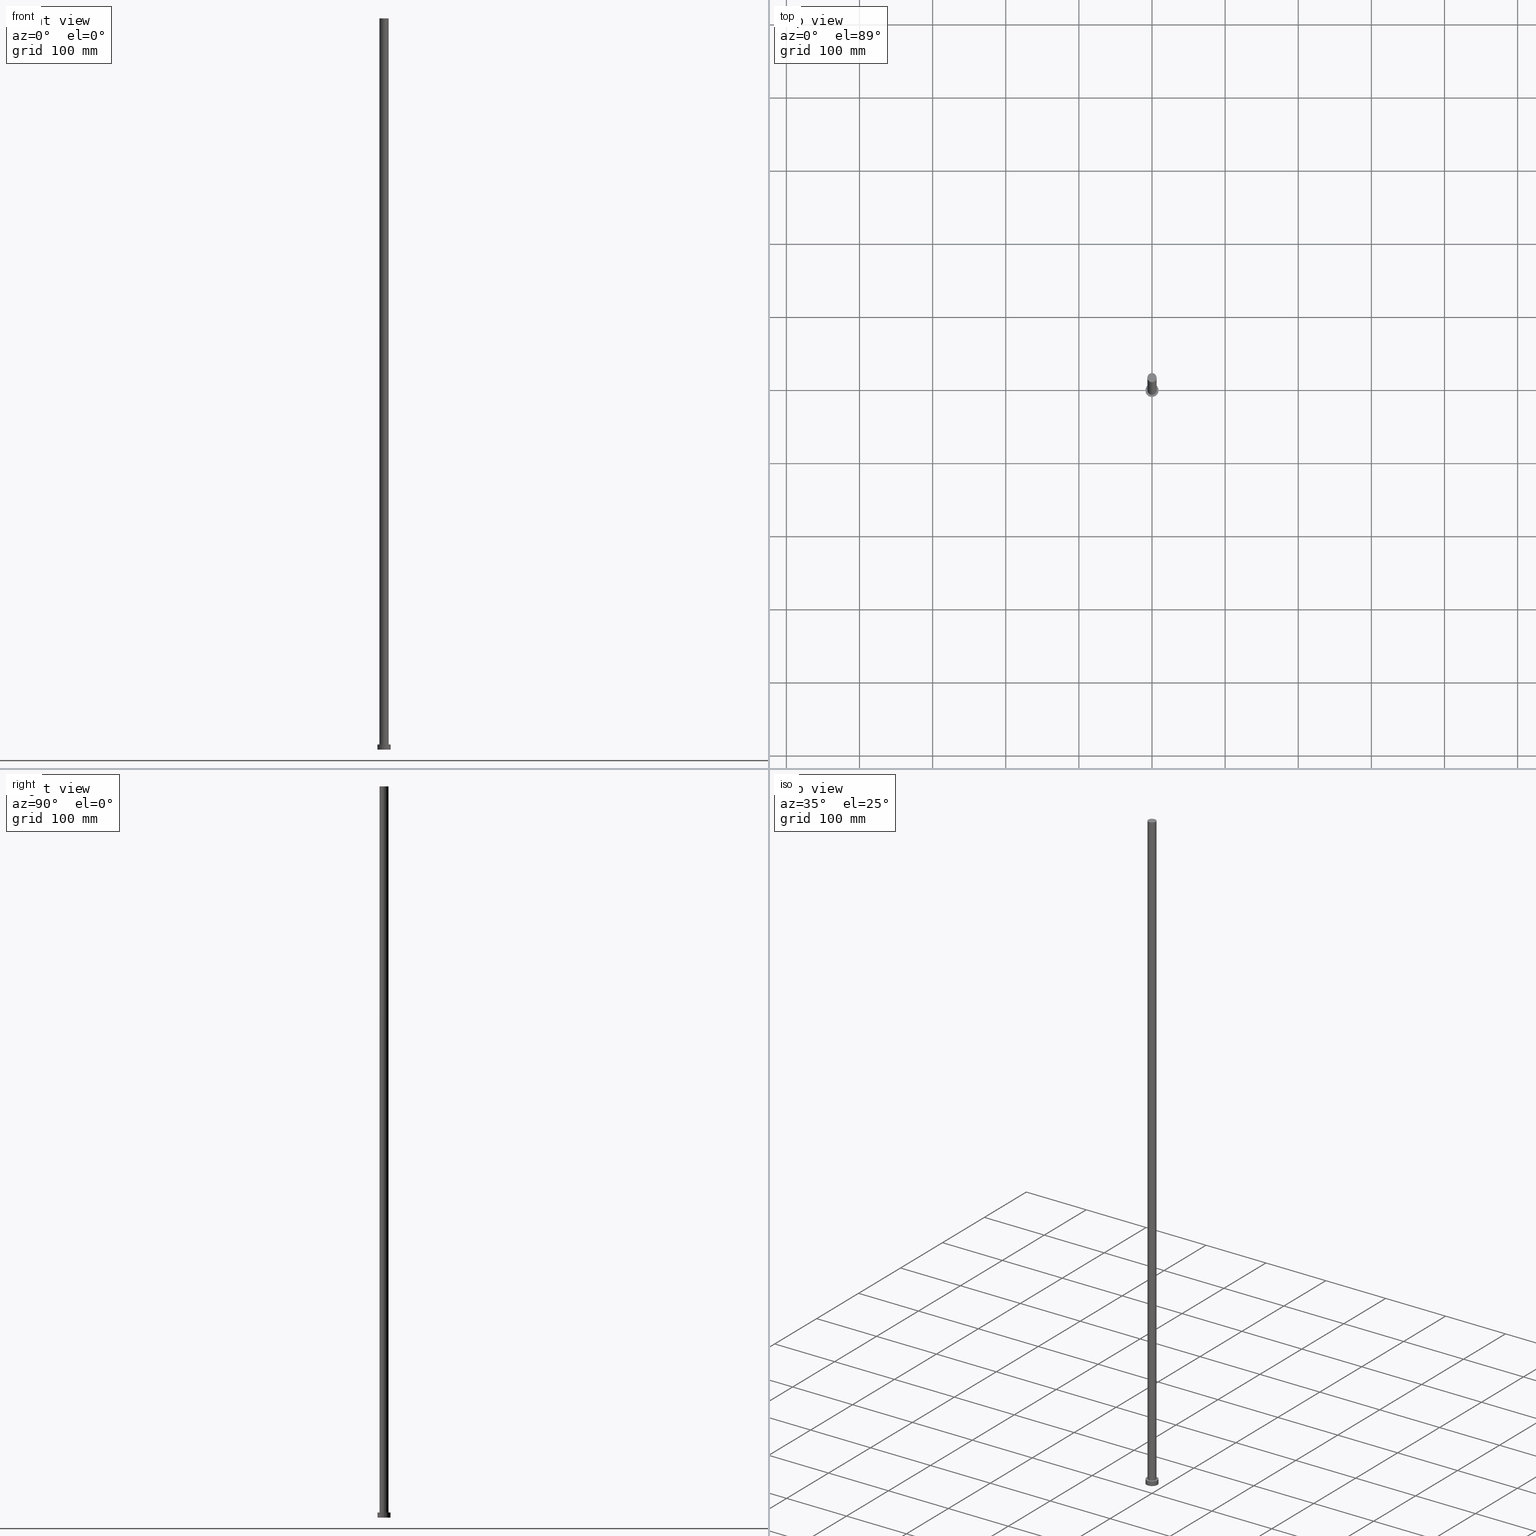
[diagram: canonical four-view strip — front | top / right | iso, engineering-drawing reading convention]
A machine part, canonical four-view strip (front | top / right | iso — engineering-drawing reading convention). The complete STEP part file that produces these views, byte-faithful:
ISO-10303-21;
HEADER;
FILE_DESCRIPTION (( 'STEP AP203' ),
    '1' );
FILE_NAME ('bc82.STEP',
    '2023-02-12T10:53:55',
    ( '' ),
    ( '' ),
    'SwSTEP 2.0',
    'SolidWorks 2019',
    '' );
FILE_SCHEMA (( 'CONFIG_CONTROL_DESIGN' ));
ENDSEC;

DATA;
#1 = CARTESIAN_POINT ( 'NONE',  ( 0.000000000000000000, 0.000000000000000000, 1000.000000000000000 ) ) ;
#2 = DIRECTION ( 'NONE',  ( -0.000000000000000000, -0.000000000000000000, -1.000000000000000000 ) ) ;
#3 = COORDINATED_UNIVERSAL_TIME_OFFSET ( 1, 0, .AHEAD. ) ;
#4 = FACE_OUTER_BOUND ( 'NONE', #162, .T. ) ;
#5 = DIRECTION ( 'NONE',  ( -0.000000000000000000, -0.000000000000000000, -1.000000000000000000 ) ) ;
#6 = VERTEX_POINT ( 'NONE', #87 ) ;
#7 = EDGE_CURVE ( 'NONE', #186, #250, #124, .T. ) ;
#8 = EDGE_LOOP ( 'NONE', ( #89, #166 ) ) ;
#9 = CC_DESIGN_DATE_AND_TIME_ASSIGNMENT ( #23, #175, ( #240 ) ) ;
#10 = ORIENTED_EDGE ( 'NONE', *, *, #41, .F. ) ;
#11 = CALENDAR_DATE ( 2023, 12, 2 ) ;
#12 = DIRECTION ( 'NONE',  ( 0.000000000000000000, 0.000000000000000000, 1.000000000000000000 ) ) ;
#13 = CYLINDRICAL_SURFACE ( 'NONE', #140, 9.000000000000000000 ) ;
#14 = DIRECTION ( 'NONE',  ( -0.000000000000000000, -0.000000000000000000, -1.000000000000000000 ) ) ;
#15 = DATE_AND_TIME ( #11, #251 ) ;
#16 = FACE_OUTER_BOUND ( 'NONE', #104, .T. ) ;
#17 = EDGE_CURVE ( 'NONE', #6, #84, #199, .T. ) ;
#18 = LINE ( 'NONE', #21, #181 ) ;
#19 = AXIS2_PLACEMENT_3D ( 'NONE', #65, #5, #83 ) ;
#20 = ADVANCED_FACE ( 'NONE', ( #170, #16 ), #129, .T. ) ;
#21 = CARTESIAN_POINT ( 'NONE',  ( -6.250000000000000000, 0.000000000000000000, 1000.000000000000000 ) ) ;
#22 = DIRECTION ( 'NONE',  ( 1.000000000000000000, 0.000000000000000000, 0.000000000000000000 ) ) ;
#23 = DATE_AND_TIME ( #196, #78 ) ;
#24 = PERSON_AND_ORGANIZATION ( #133, #209 ) ;
#25 = APPROVAL_STATUS ( 'not_yet_approved' ) ;
#26 = APPROVAL ( #239, 'NEUR�EN�' ) ;
#27 = DIRECTION ( 'NONE',  ( 0.000000000000000000, 0.000000000000000000, 1.000000000000000000 ) ) ;
#28 = APPLICATION_CONTEXT ( 'configuration controlled 3d designs of mechanical parts and assemblies' ) ;
#29 = PRODUCT_RELATED_PRODUCT_CATEGORY ( 'detail', '', ( #121 ) ) ;
#30 = PERSON_AND_ORGANIZATION_ROLE ( 'classification_officer' ) ;
#31 = APPROVAL_DATE_TIME ( #88, #227 ) ;
#32 = EDGE_CURVE ( 'NONE', #248, #186, #208, .T. ) ;
#33 = DIRECTION ( 'NONE',  ( 1.000000000000000000, 0.000000000000000000, 0.000000000000000000 ) ) ;
#34 = CARTESIAN_POINT ( 'NONE',  ( -9.000000000000000000, 0.000000000000000000, 0.000000000000000000 ) ) ;
#35 = UNCERTAINTY_MEASURE_WITH_UNIT (LENGTH_MEASURE( 1.000000000000000082E-05 ), #238, 'distance_accuracy_value', 'NONE');
#36 = VECTOR ( 'NONE', #38, 1000.000000000000000 ) ;
#37 = DIRECTION ( 'NONE',  ( 0.000000000000000000, 0.000000000000000000, 1.000000000000000000 ) ) ;
#38 = DIRECTION ( 'NONE',  ( -0.000000000000000000, -0.000000000000000000, -1.000000000000000000 ) ) ;
#39 = CC_DESIGN_APPROVAL ( #227, ( #70 ) ) ;
#40 = CARTESIAN_POINT ( 'NONE',  ( 0.000000000000000000, 0.000000000000000000, 7.000000000000000000 ) ) ;
#41 = EDGE_CURVE ( 'NONE', #84, #6, #212, .T. ) ;
#42 = DATE_AND_TIME ( #216, #160 ) ;
#43 = CARTESIAN_POINT ( 'NONE',  ( 0.000000000000000000, 0.000000000000000000, 0.000000000000000000 ) ) ;
#44 = EDGE_CURVE ( 'NONE', #126, #248, #132, .T. ) ;
#45 = MECHANICAL_CONTEXT ( 'NONE', #28, 'mechanical' ) ;
#46 = AXIS2_PLACEMENT_3D ( 'NONE', #60, #135, #149 ) ;
#47 = ORIENTED_EDGE ( 'NONE', *, *, #173, .T. ) ;
#48 = ORIENTED_EDGE ( 'NONE', *, *, #105, .T. ) ;
#49 = VECTOR ( 'NONE', #177, 1000.000000000000000 ) ;
#50 = APPROVAL_PERSON_ORGANIZATION ( #76, #227, #111 ) ;
#51 = CARTESIAN_POINT ( 'NONE',  ( 0.000000000000000000, 0.000000000000000000, 7.000000000000000000 ) ) ;
#52 = VERTEX_POINT ( 'NONE', #255 ) ;
#53 = CARTESIAN_POINT ( 'NONE',  ( 0.000000000000000000, 0.000000000000000000, 7.000000000000000000 ) ) ;
#54 = COORDINATED_UNIVERSAL_TIME_OFFSET ( 1, 0, .AHEAD. ) ;
#55 = CARTESIAN_POINT ( 'NONE',  ( 6.250000000000000000, 7.654042494670957606E-16, 1000.000000000000000 ) ) ;
#56 = APPLICATION_CONTEXT ( 'configuration controlled 3d designs of mechanical parts and assemblies' ) ;
#57 = CARTESIAN_POINT ( 'NONE',  ( 0.000000000000000000, 0.000000000000000000, 0.000000000000000000 ) ) ;
#58 = AXIS2_PLACEMENT_3D ( 'NONE', #1, #236, #93 ) ;
#59 = CARTESIAN_POINT ( 'NONE',  ( 0.000000000000000000, 0.000000000000000000, 1000.000000000000000 ) ) ;
#60 = CARTESIAN_POINT ( 'NONE',  ( 0.000000000000000000, 0.000000000000000000, 7.000000000000000000 ) ) ;
#61 = ADVANCED_FACE ( 'NONE', ( #131 ), #171, .T. ) ;
#62 = LOCAL_TIME ( 11, 53, 55.00000000000000000, #128 ) ;
#63 = APPLICATION_PROTOCOL_DEFINITION ( 'international standard', 'config_control_design', 1994, #56 ) ;
#64 = APPROVAL_ROLE ( '' ) ;
#65 = CARTESIAN_POINT ( 'NONE',  ( 0.000000000000000000, 0.000000000000000000, 7.000000000000000000 ) ) ;
#66 = PERSON_AND_ORGANIZATION ( #133, #209 ) ;
#67 = VERTEX_POINT ( 'NONE', #80 ) ;
#68 = ADVANCED_BREP_SHAPE_REPRESENTATION ( 'bc82', ( #180, #81 ), #220 ) ;
#69 = ORIENTED_EDGE ( 'NONE', *, *, #141, .F. ) ;
#70 = SECURITY_CLASSIFICATION ( '', '', #254 ) ;
#71 = CC_DESIGN_PERSON_AND_ORGANIZATION_ASSIGNMENT ( #156, #219, ( #121 ) ) ;
#72 = DIRECTION ( 'NONE',  ( 1.000000000000000000, 0.000000000000000000, 0.000000000000000000 ) ) ;
#73 = DIRECTION ( 'NONE',  ( -0.000000000000000000, -0.000000000000000000, -1.000000000000000000 ) ) ;
#74 = PERSON_AND_ORGANIZATION ( #133, #209 ) ;
#75 = CYLINDRICAL_SURFACE ( 'NONE', #94, 6.250000000000000000 ) ;
#76 = PERSON_AND_ORGANIZATION ( #133, #209 ) ;
#77 = CARTESIAN_POINT ( 'NONE',  ( 0.000000000000000000, 0.000000000000000000, 1000.000000000000000 ) ) ;
#78 = LOCAL_TIME ( 11, 53, 55.00000000000000000, #119 ) ;
#79 = DIRECTION ( 'NONE',  ( 0.000000000000000000, 0.000000000000000000, 1.000000000000000000 ) ) ;
#80 = CARTESIAN_POINT ( 'NONE',  ( -9.000000000000000000, 0.000000000000000000, 7.000000000000000000 ) ) ;
#81 = AXIS2_PLACEMENT_3D ( 'NONE', #43, #178, #22 ) ;
#82 = PERSON_AND_ORGANIZATION ( #133, #209 ) ;
#83 = DIRECTION ( 'NONE',  ( -1.000000000000000000, 0.000000000000000000, 0.000000000000000000 ) ) ;
#84 = VERTEX_POINT ( 'NONE', #34 ) ;
#85 = EDGE_LOOP ( 'NONE', ( #10, #144 ) ) ;
#86 = AXIS2_PLACEMENT_3D ( 'NONE', #90, #79, #234 ) ;
#87 = CARTESIAN_POINT ( 'NONE',  ( 9.000000000000000000, 1.102182119232617714E-15, 0.000000000000000000 ) ) ;
#88 = DATE_AND_TIME ( #226, #62 ) ;
#89 = ORIENTED_EDGE ( 'NONE', *, *, #159, .F. ) ;
#90 = CARTESIAN_POINT ( 'NONE',  ( 0.000000000000000000, 0.000000000000000000, 1000.000000000000000 ) ) ;
#91 = DIRECTION ( 'NONE',  ( 1.000000000000000000, 0.000000000000000000, 0.000000000000000000 ) ) ;
#92 = CLOSED_SHELL ( 'NONE', ( #165, #176, #210, #20, #122, #194, #61 ) ) ;
#93 = DIRECTION ( 'NONE',  ( 1.000000000000000000, 0.000000000000000000, 0.000000000000000000 ) ) ;
#94 = AXIS2_PLACEMENT_3D ( 'NONE', #150, #130, #211 ) ;
#95 = EDGE_CURVE ( 'NONE', #248, #126, #205, .T. ) ;
#96 = DIRECTION ( 'NONE',  ( 0.000000000000000000, 0.000000000000000000, 1.000000000000000000 ) ) ;
#97 = CALENDAR_DATE ( 2023, 12, 2 ) ;
#98 = APPROVAL_PERSON_ORGANIZATION ( #82, #26, #64 ) ;
#99 = CARTESIAN_POINT ( 'NONE',  ( 6.250000000000000000, 7.654042494670957606E-16, 1000.000000000000000 ) ) ;
#100 = AXIS2_PLACEMENT_3D ( 'NONE', #153, #37, #193 ) ;
#101 = APPROVAL_DATE_TIME ( #242, #112 ) ;
#102 = CIRCLE ( 'NONE', #184, 6.250000000000000000 ) ;
#103 = DIRECTION ( 'NONE',  ( 1.000000000000000000, 0.000000000000000000, 0.000000000000000000 ) ) ;
#104 = EDGE_LOOP ( 'NONE', ( #47, #48 ) ) ;
#105 = EDGE_CURVE ( 'NONE', #52, #67, #244, .T. ) ;
#106 = ORIENTED_EDGE ( 'NONE', *, *, #233, .T. ) ;
#107 = EDGE_LOOP ( 'NONE', ( #202, #106, #204, #69 ) ) ;
#108 = EDGE_LOOP ( 'NONE', ( #229, #146, #183, #123 ) ) ;
#109 = CC_DESIGN_SECURITY_CLASSIFICATION ( #70, ( #185 ) ) ;
#110 = PLANE ( 'NONE',  #118 ) ;
#111 = APPROVAL_ROLE ( '' ) ;
#112 = APPROVAL ( #25, 'NEUR�EN�' ) ;
#113 = FACE_OUTER_BOUND ( 'NONE', #85, .T. ) ;
#114 = AXIS2_PLACEMENT_3D ( 'NONE', #252, #115, #213 ) ;
#115 = DIRECTION ( 'NONE',  ( 0.000000000000000000, 0.000000000000000000, 1.000000000000000000 ) ) ;
#116 = DIRECTION ( 'NONE',  ( -1.000000000000000000, 0.000000000000000000, 0.000000000000000000 ) ) ;
#117 = DIRECTION ( 'NONE',  ( 0.000000000000000000, 0.000000000000000000, 1.000000000000000000 ) ) ;
#118 = AXIS2_PLACEMENT_3D ( 'NONE', #57, #96, #231 ) ;
#119 = COORDINATED_UNIVERSAL_TIME_OFFSET ( 1, 0, .AHEAD. ) ;
#120 = CYLINDRICAL_SURFACE ( 'NONE', #19, 9.000000000000000000 ) ;
#121 = PRODUCT ( 'bc82', 'bc82', '', ( #45 ) ) ;
#122 = ADVANCED_FACE ( 'NONE', ( #113 ), #110, .F. ) ;
#123 = ORIENTED_EDGE ( 'NONE', *, *, #151, .F. ) ;
#124 = CIRCLE ( 'NONE', #161, 6.250000000000000000 ) ;
#125 = ORIENTED_EDGE ( 'NONE', *, *, #233, .F. ) ;
#126 = VERTEX_POINT ( 'NONE', #190 ) ;
#127 = AXIS2_PLACEMENT_3D ( 'NONE', #40, #154, #172 ) ;
#128 = COORDINATED_UNIVERSAL_TIME_OFFSET ( 1, 0, .AHEAD. ) ;
#129 = PLANE ( 'NONE',  #114 ) ;
#130 = DIRECTION ( 'NONE',  ( -0.000000000000000000, -0.000000000000000000, -1.000000000000000000 ) ) ;
#131 = FACE_OUTER_BOUND ( 'NONE', #228, .T. ) ;
#132 = CIRCLE ( 'NONE', #58, 6.250000000000000000 ) ;
#133 = PERSON ( 'NEUR�EN�', 'NEUR�EN�', 'NEUR�EN�', ('NEUR�EN�'), ('NEUR�EN�'), ('NEUR�EN�') ) ;
#134 = FACE_OUTER_BOUND ( 'NONE', #108, .T. ) ;
#135 = DIRECTION ( 'NONE',  ( 0.000000000000000000, 0.000000000000000000, 1.000000000000000000 ) ) ;
#136 = PERSON_AND_ORGANIZATION_ROLE ( 'creator' ) ;
#137 = VECTOR ( 'NONE', #73, 1000.000000000000000 ) ;
#138 = COORDINATED_UNIVERSAL_TIME_OFFSET ( 1, 0, .AHEAD. ) ;
#139 = PERSON_AND_ORGANIZATION ( #133, #209 ) ;
#140 = AXIS2_PLACEMENT_3D ( 'NONE', #53, #14, #168 ) ;
#141 = EDGE_CURVE ( 'NONE', #67, #84, #189, .T. ) ;
#142 =( NAMED_UNIT ( * ) SI_UNIT ( $, .STERADIAN. ) SOLID_ANGLE_UNIT ( ) );
#143 = CC_DESIGN_PERSON_AND_ORGANIZATION_ASSIGNMENT ( #74, #247, ( #185 ) ) ;
#144 = ORIENTED_EDGE ( 'NONE', *, *, #17, .F. ) ;
#145 = EDGE_LOOP ( 'NONE', ( #163, #245, #206, #187 ) ) ;
#146 = ORIENTED_EDGE ( 'NONE', *, *, #32, .T. ) ;
#147 = LOCAL_TIME ( 11, 53, 55.00000000000000000, #3 ) ;
#148 = PERSON_AND_ORGANIZATION ( #133, #209 ) ;
#149 = DIRECTION ( 'NONE',  ( 1.000000000000000000, 0.000000000000000000, 0.000000000000000000 ) ) ;
#150 = CARTESIAN_POINT ( 'NONE',  ( 0.000000000000000000, 0.000000000000000000, 1000.000000000000000 ) ) ;
#151 = EDGE_CURVE ( 'NONE', #126, #250, #18, .T. ) ;
#152 = CC_DESIGN_APPROVAL ( #26, ( #185 ) ) ;
#153 = CARTESIAN_POINT ( 'NONE',  ( 0.000000000000000000, 0.000000000000000000, 0.000000000000000000 ) ) ;
#154 = DIRECTION ( 'NONE',  ( 0.000000000000000000, 0.000000000000000000, 1.000000000000000000 ) ) ;
#155 = DIRECTION ( 'NONE',  ( 0.000000000000000000, 0.000000000000000000, 1.000000000000000000 ) ) ;
#156 = PERSON_AND_ORGANIZATION ( #133, #209 ) ;
#157 = CC_DESIGN_PERSON_AND_ORGANIZATION_ASSIGNMENT ( #66, #136, ( #240 ) ) ;
#158 = CARTESIAN_POINT ( 'NONE',  ( 9.000000000000000000, 1.102182119232617714E-15, 7.000000000000000000 ) ) ;
#159 = EDGE_CURVE ( 'NONE', #250, #186, #102, .T. ) ;
#160 = LOCAL_TIME ( 11, 53, 55.00000000000000000, #138 ) ;
#161 = AXIS2_PLACEMENT_3D ( 'NONE', #51, #12, #72 ) ;
#162 = EDGE_LOOP ( 'NONE', ( #125, #225, #182, #188 ) ) ;
#163 = ORIENTED_EDGE ( 'NONE', *, *, #32, .F. ) ;
#164 = APPROVAL_STATUS ( 'not_yet_approved' ) ;
#165 = ADVANCED_FACE ( 'NONE', ( #134 ), #214, .T. ) ;
#166 = ORIENTED_EDGE ( 'NONE', *, *, #7, .F. ) ;
#167 = DIRECTION ( 'NONE',  ( -0.000000000000000000, -0.000000000000000000, -1.000000000000000000 ) ) ;
#168 = DIRECTION ( 'NONE',  ( -1.000000000000000000, 0.000000000000000000, 0.000000000000000000 ) ) ;
#169 = PERSON_AND_ORGANIZATION_ROLE ( 'creator' ) ;
#170 = FACE_BOUND ( 'NONE', #8, .T. ) ;
#171 = PLANE ( 'NONE',  #86 ) ;
#172 = DIRECTION ( 'NONE',  ( 1.000000000000000000, 0.000000000000000000, 0.000000000000000000 ) ) ;
#173 = EDGE_CURVE ( 'NONE', #67, #52, #249, .T. ) ;
#174 =( NAMED_UNIT ( * ) PLANE_ANGLE_UNIT ( ) SI_UNIT ( $, .RADIAN. ) );
#175 = DATE_TIME_ROLE ( 'creation_date' ) ;
#176 = ADVANCED_FACE ( 'NONE', ( #215 ), #13, .T. ) ;
#177 = DIRECTION ( 'NONE',  ( -0.000000000000000000, -0.000000000000000000, -1.000000000000000000 ) ) ;
#178 = DIRECTION ( 'NONE',  ( 0.000000000000000000, 0.000000000000000000, 1.000000000000000000 ) ) ;
#179 = PRODUCT_DEFINITION_SHAPE ( 'NONE', 'NONE',  #240 ) ;
#180 = MANIFOLD_SOLID_BREP ( 'P�idat vysunut�m3', #92 ) ;
#181 = VECTOR ( 'NONE', #167, 1000.000000000000000 ) ;
#182 = ORIENTED_EDGE ( 'NONE', *, *, #141, .T. ) ;
#183 = ORIENTED_EDGE ( 'NONE', *, *, #7, .T. ) ;
#184 = AXIS2_PLACEMENT_3D ( 'NONE', #235, #117, #91 ) ;
#185 = PRODUCT_DEFINITION_FORMATION_WITH_SPECIFIED_SOURCE ( 'LIBOVOLN�', '', #121, .NOT_KNOWN. ) ;
#186 = VERTEX_POINT ( 'NONE', #232 ) ;
#187 = ORIENTED_EDGE ( 'NONE', *, *, #159, .T. ) ;
#188 = ORIENTED_EDGE ( 'NONE', *, *, #41, .T. ) ;
#189 = LINE ( 'NONE', #192, #137 ) ;
#190 = CARTESIAN_POINT ( 'NONE',  ( -6.250000000000000000, 0.000000000000000000, 1000.000000000000000 ) ) ;
#191 = DESIGN_CONTEXT ( 'detailed design', #56, 'design' ) ;
#192 = CARTESIAN_POINT ( 'NONE',  ( -9.000000000000000000, 0.000000000000000000, 7.000000000000000000 ) ) ;
#193 = DIRECTION ( 'NONE',  ( 1.000000000000000000, 0.000000000000000000, 0.000000000000000000 ) ) ;
#194 = ADVANCED_FACE ( 'NONE', ( #253 ), #75, .T. ) ;
#195 = CC_DESIGN_DATE_AND_TIME_ASSIGNMENT ( #15, #203, ( #70 ) ) ;
#196 = CALENDAR_DATE ( 2023, 12, 2 ) ;
#197 = APPROVAL_DATE_TIME ( #42, #26 ) ;
#198 = APPLICATION_PROTOCOL_DEFINITION ( 'international standard', 'config_control_design', 1994, #28 ) ;
#199 = CIRCLE ( 'NONE', #224, 9.000000000000000000 ) ;
#200 = CARTESIAN_POINT ( 'NONE',  ( -6.250000000000000000, 0.000000000000000000, 7.000000000000000000 ) ) ;
#201 = CARTESIAN_POINT ( 'NONE',  ( 0.000000000000000000, 0.000000000000000000, 0.000000000000000000 ) ) ;
#202 = ORIENTED_EDGE ( 'NONE', *, *, #105, .F. ) ;
#203 = DATE_TIME_ROLE ( 'classification_date' ) ;
#204 = ORIENTED_EDGE ( 'NONE', *, *, #17, .T. ) ;
#205 = CIRCLE ( 'NONE', #230, 6.250000000000000000 ) ;
#206 = ORIENTED_EDGE ( 'NONE', *, *, #151, .T. ) ;
#207 = SHAPE_DEFINITION_REPRESENTATION ( #179, #68 ) ;
#208 = LINE ( 'NONE', #55, #36 ) ;
#209 = ORGANIZATION ( 'NEUR�EN�', 'NEUR�EN�', '' ) ;
#210 = ADVANCED_FACE ( 'NONE', ( #4 ), #120, .T. ) ;
#211 = DIRECTION ( 'NONE',  ( -1.000000000000000000, 0.000000000000000000, 0.000000000000000000 ) ) ;
#212 = CIRCLE ( 'NONE', #100, 9.000000000000000000 ) ;
#213 = DIRECTION ( 'NONE',  ( 1.000000000000000000, 0.000000000000000000, -0.000000000000000000 ) ) ;
#214 = CYLINDRICAL_SURFACE ( 'NONE', #241, 6.250000000000000000 ) ;
#215 = FACE_OUTER_BOUND ( 'NONE', #107, .T. ) ;
#216 = CALENDAR_DATE ( 2023, 12, 2 ) ;
#217 = CC_DESIGN_APPROVAL ( #112, ( #240 ) ) ;
#218 = APPROVAL_ROLE ( '' ) ;
#219 = PERSON_AND_ORGANIZATION_ROLE ( 'design_owner' ) ;
#220 =( GEOMETRIC_REPRESENTATION_CONTEXT ( 3 ) GLOBAL_UNCERTAINTY_ASSIGNED_CONTEXT ( ( #35 ) ) GLOBAL_UNIT_ASSIGNED_CONTEXT ( ( #238, #174, #142 ) ) REPRESENTATION_CONTEXT ( 'NONE', 'WORKASPACE' ) );
#221 = APPROVAL_PERSON_ORGANIZATION ( #139, #112, #218 ) ;
#222 = ORIENTED_EDGE ( 'NONE', *, *, #44, .T. ) ;
#223 = ORIENTED_EDGE ( 'NONE', *, *, #95, .T. ) ;
#224 = AXIS2_PLACEMENT_3D ( 'NONE', #201, #27, #103 ) ;
#225 = ORIENTED_EDGE ( 'NONE', *, *, #173, .F. ) ;
#226 = CALENDAR_DATE ( 2023, 12, 2 ) ;
#227 = APPROVAL ( #164, 'NEUR�EN�' ) ;
#228 = EDGE_LOOP ( 'NONE', ( #222, #223 ) ) ;
#229 = ORIENTED_EDGE ( 'NONE', *, *, #95, .F. ) ;
#230 = AXIS2_PLACEMENT_3D ( 'NONE', #77, #155, #33 ) ;
#231 = DIRECTION ( 'NONE',  ( 1.000000000000000000, 0.000000000000000000, -0.000000000000000000 ) ) ;
#232 = CARTESIAN_POINT ( 'NONE',  ( 6.250000000000000000, 7.654042494670957606E-16, 7.000000000000000000 ) ) ;
#233 = EDGE_CURVE ( 'NONE', #52, #6, #243, .T. ) ;
#234 = DIRECTION ( 'NONE',  ( 1.000000000000000000, 0.000000000000000000, -0.000000000000000000 ) ) ;
#235 = CARTESIAN_POINT ( 'NONE',  ( 0.000000000000000000, 0.000000000000000000, 7.000000000000000000 ) ) ;
#236 = DIRECTION ( 'NONE',  ( 0.000000000000000000, 0.000000000000000000, 1.000000000000000000 ) ) ;
#237 = CC_DESIGN_PERSON_AND_ORGANIZATION_ASSIGNMENT ( #148, #30, ( #70 ) ) ;
#238 =( LENGTH_UNIT ( ) NAMED_UNIT ( * ) SI_UNIT ( .MILLI., .METRE. ) );
#239 = APPROVAL_STATUS ( 'not_yet_approved' ) ;
#240 = PRODUCT_DEFINITION ( 'NEZN�M�', '', #185, #191 ) ;
#241 = AXIS2_PLACEMENT_3D ( 'NONE', #59, #2, #116 ) ;
#242 = DATE_AND_TIME ( #97, #147 ) ;
#243 = LINE ( 'NONE', #158, #49 ) ;
#244 = CIRCLE ( 'NONE', #127, 9.000000000000000000 ) ;
#245 = ORIENTED_EDGE ( 'NONE', *, *, #44, .F. ) ;
#246 = CC_DESIGN_PERSON_AND_ORGANIZATION_ASSIGNMENT ( #24, #169, ( #185 ) ) ;
#247 = PERSON_AND_ORGANIZATION_ROLE ( 'design_supplier' ) ;
#248 = VERTEX_POINT ( 'NONE', #99 ) ;
#249 = CIRCLE ( 'NONE', #46, 9.000000000000000000 ) ;
#250 = VERTEX_POINT ( 'NONE', #200 ) ;
#251 = LOCAL_TIME ( 11, 53, 55.00000000000000000, #54 ) ;
#252 = CARTESIAN_POINT ( 'NONE',  ( 0.000000000000000000, 0.000000000000000000, 7.000000000000000000 ) ) ;
#253 = FACE_OUTER_BOUND ( 'NONE', #145, .T. ) ;
#254 = SECURITY_CLASSIFICATION_LEVEL ( 'unclassified' ) ;
#255 = CARTESIAN_POINT ( 'NONE',  ( 9.000000000000000000, 1.102182119232617714E-15, 7.000000000000000000 ) ) ;
ENDSEC;
END-ISO-10303-21;
